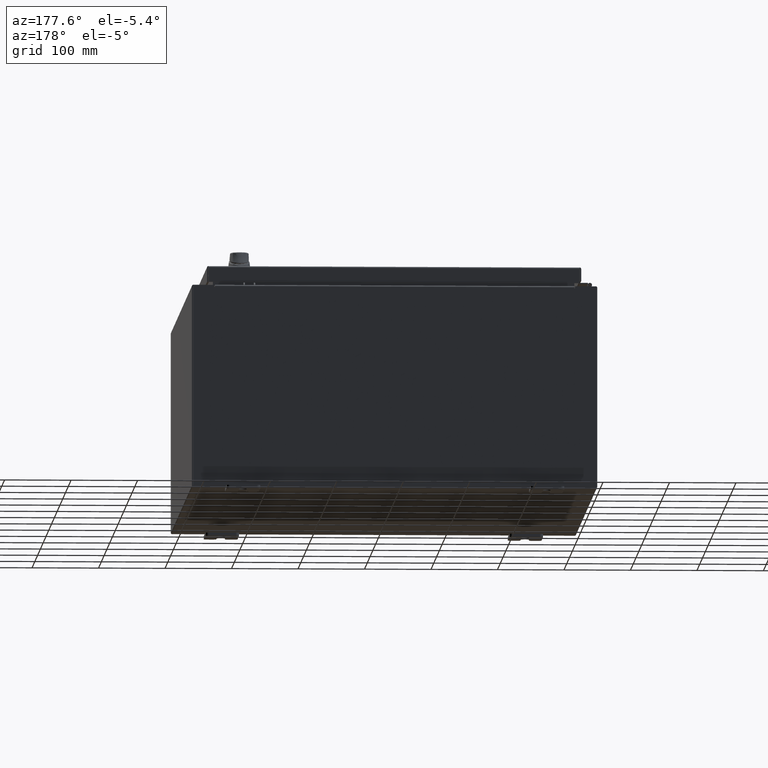
[diagram: clean part render]
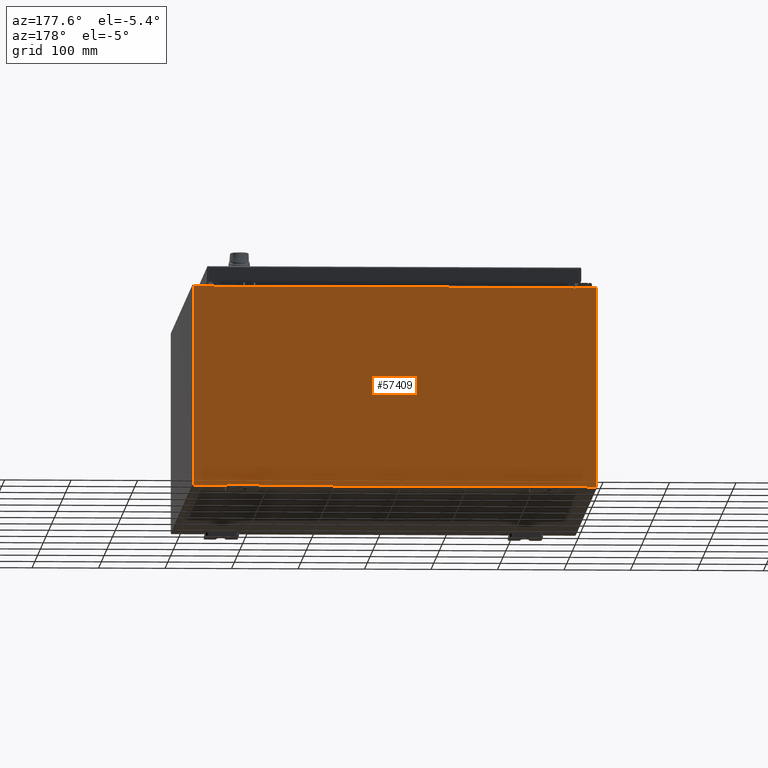
[diagram: same view with one face highlighted and labeled with its STEP entity id]
A machine part, auxiliary view. The second image highlights one B-rep face of the part: STEP entity #57409.
In plain terms, the highlighted planar face has unit normal (0, -1, 0).
Its self-contained STEP definition (entity closure, byte-faithful):
#686 = EDGE_CURVE ( 'NONE', #81091, #35815, #71643, .T. ) ;
#1910 = CARTESIAN_POINT ( 'NONE',  ( -10.65587500000000200, 0.0000000000000000000, 5.874950000000001000 ) ) ;
#2656 = EDGE_CURVE ( 'NONE', #72670, #35815, #78476, .T. ) ;
#2892 = CARTESIAN_POINT ( 'NONE',  ( -11.92530000000000000, 0.0000000000000000000, 5.925300000000000000 ) ) ;
#3544 = LINE ( 'NONE', #85472, #48846 ) ;
#3907 = CARTESIAN_POINT ( 'NONE',  ( -11.92530000000000000, 0.0000000000000000000, 5.925300000000000000 ) ) ;
#5787 = LINE ( 'NONE', #97620, #26984 ) ;
#7012 = CARTESIAN_POINT ( 'NONE',  ( 11.92530000000000000, 0.0000000000000000000, 5.925300000000001800 ) ) ;
#7559 = AXIS2_PLACEMENT_3D ( 'NONE', #54464, #36671, #99892 ) ;
#7706 = EDGE_CURVE ( 'NONE', #103968, #27398, #89135, .T. ) ;
#8965 = CARTESIAN_POINT ( 'NONE',  ( -10.67455000000000200, 0.0000000000000000000, 5.925300000000000000 ) ) ;
#9021 = EDGE_CURVE ( 'NONE', #86679, #72670, #12524, .T. ) ;
#9444 = ORIENTED_EDGE ( 'NONE', *, *, #7706, .T. ) ;
#9932 = ORIENTED_EDGE ( 'NONE', *, *, #52444, .T. ) ;
#10978 = DIRECTION ( 'NONE',  ( 0.0000000000000000000, 0.0000000000000000000, -1.000000000000000000 ) ) ;
#11747 = EDGE_CURVE ( 'NONE', #107232, #67331, #5787, .T. ) ;
#12524 = CIRCLE ( 'NONE', #58686, 0.01867499999999949400 ) ;
#14057 = LINE ( 'NONE', #3907, #35271 ) ;
#15248 = VECTOR ( 'NONE', #114558, 39.37007874015748100 ) ;
#15449 = EDGE_CURVE ( 'NONE', #54934, #86679, #60516, .T. ) ;
#16130 = DIRECTION ( 'NONE',  ( -1.000000000000000000, -0.0000000000000000000, -0.0000000000000000000 ) ) ;
#16833 = DIRECTION ( 'NONE',  ( 0.0000000000000000000, 0.0000000000000000000, -1.000000000000000000 ) ) ;
#16972 = VECTOR ( 'NONE', #86688, 39.37007874015748100 ) ;
#18434 = VERTEX_POINT ( 'NONE', #79920 ) ;
#20678 = VECTOR ( 'NONE', #64778, 39.37007874015748100 ) ;
#21076 = DIRECTION ( 'NONE',  ( 1.000000000000000000, 0.0000000000000000000, 4.581600452255731000E-017 ) ) ;
#22870 = CIRCLE ( 'NONE', #63201, 0.01867499999999949400 ) ;
#25377 = VERTEX_POINT ( 'NONE', #56073 ) ;
#26229 = EDGE_CURVE ( 'NONE', #27398, #89857, #95428, .T. ) ;
#26605 = CARTESIAN_POINT ( 'NONE',  ( 10.63720000000000400, 0.0000000000000000000, 5.912300000000001000 ) ) ;
#26984 = VECTOR ( 'NONE', #69982, 39.37007874015748100 ) ;
#27398 = VERTEX_POINT ( 'NONE', #41277 ) ;
#27547 = PLANE ( 'NONE',  #7559 ) ;
#31204 = DIRECTION ( 'NONE',  ( -0.0000000000000000000, -0.0000000000000000000, 1.000000000000000000 ) ) ;
#31478 = CARTESIAN_POINT ( 'NONE',  ( 10.67455000000000200, 0.0000000000000000000, 5.925300000000001800 ) ) ;
#32527 = CARTESIAN_POINT ( 'NONE',  ( 11.92530000000000000, 0.0000000000000000000, 5.925300000000001800 ) ) ;
#34537 = DIRECTION ( 'NONE',  ( 0.0000000000000000000, 0.0000000000000000000, 1.000000000000000000 ) ) ;
#35271 = VECTOR ( 'NONE', #31204, 39.37007874015748100 ) ;
#35815 = VERTEX_POINT ( 'NONE', #26605 ) ;
#36671 = DIRECTION ( 'NONE',  ( 0.0000000000000000000, -1.000000000000000000, 0.0000000000000000000 ) ) ;
#39349 = LINE ( 'NONE', #51295, #15248 ) ;
#41277 = CARTESIAN_POINT ( 'NONE',  ( 11.92530000000000000, 0.0000000000000000000, -5.925299999999999100 ) ) ;
#48538 = EDGE_CURVE ( 'NONE', #25377, #107232, #22870, .T. ) ;
#48846 = VECTOR ( 'NONE', #58612, 39.37007874015748100 ) ;
#49176 = CARTESIAN_POINT ( 'NONE',  ( 10.65587500000000200, 0.0000000000000000000, 5.874950000000001000 ) ) ;
#49397 = ORIENTED_EDGE ( 'NONE', *, *, #26229, .T. ) ;
#51295 = CARTESIAN_POINT ( 'NONE',  ( -11.92530000000000000, 0.0000000000000000000, 5.925300000000000000 ) ) ;
#52444 = EDGE_CURVE ( 'NONE', #89857, #18434, #14057, .T. ) ;
#52532 = ORIENTED_EDGE ( 'NONE', *, *, #9021, .F. ) ;
#54464 = CARTESIAN_POINT ( 'NONE',  ( 0.0000000000000000000, 0.0000000000000000000, 0.0000000000000000000 ) ) ;
#54748 = CARTESIAN_POINT ( 'NONE',  ( -10.63720000000000400, -1.707404996040164500E-016, 5.912300000000001000 ) ) ;
#54934 = VERTEX_POINT ( 'NONE', #31478 ) ;
#55134 = CARTESIAN_POINT ( 'NONE',  ( -10.67455000000000200, 0.0000000000000000000, 5.874950000000001000 ) ) ;
#56073 = CARTESIAN_POINT ( 'NONE',  ( -10.63720000000000400, -0.0000000000000000000, 5.874950000000001000 ) ) ;
#57285 = VECTOR ( 'NONE', #34537, 39.37007874015748100 ) ;
#57409 = ADVANCED_FACE ( 'NONE', ( #98345 ), #27547, .F. ) ;
#57705 = EDGE_LOOP ( 'NONE', ( #80291, #81632, #97486, #79036, #102429, #52532, #116443, #86962, #9444, #49397, #9932, #88371 ) ) ;
#58270 = DIRECTION ( 'NONE',  ( 0.0000000000000000000, 0.0000000000000000000, -1.000000000000000000 ) ) ;
#58612 = DIRECTION ( 'NONE',  ( 0.0000000000000000000, 0.0000000000000000000, -1.000000000000000000 ) ) ;
#58686 = AXIS2_PLACEMENT_3D ( 'NONE', #49176, #112414, #58270 ) ;
#60484 = CARTESIAN_POINT ( 'NONE',  ( 10.67455000000000200, 0.0000000000000000000, 5.874950000000001000 ) ) ;
#60516 = LINE ( 'NONE', #116080, #84570 ) ;
#63201 = AXIS2_PLACEMENT_3D ( 'NONE', #1910, #65212, #10978 ) ;
#63534 = VECTOR ( 'NONE', #21076, 39.37007874015748100 ) ;
#64778 = DIRECTION ( 'NONE',  ( 1.000000000000000000, 0.0000000000000000000, 0.0000000000000000000 ) ) ;
#65212 = DIRECTION ( 'NONE',  ( -0.0000000000000000000, 1.000000000000000000, -0.0000000000000000000 ) ) ;
#66384 = LINE ( 'NONE', #2892, #63534 ) ;
#67331 = VERTEX_POINT ( 'NONE', #8965 ) ;
#69982 = DIRECTION ( 'NONE',  ( 0.0000000000000000000, 0.0000000000000000000, 1.000000000000000000 ) ) ;
#71643 = LINE ( 'NONE', #54748, #20678 ) ;
#72670 = VERTEX_POINT ( 'NONE', #108657 ) ;
#73079 = EDGE_CURVE ( 'NONE', #81091, #25377, #3544, .T. ) ;
#78476 = LINE ( 'NONE', #88703, #57285 ) ;
#79036 = ORIENTED_EDGE ( 'NONE', *, *, #686, .T. ) ;
#79920 = CARTESIAN_POINT ( 'NONE',  ( -11.92530000000000000, 0.0000000000000000000, 5.925300000000000000 ) ) ;
#80291 = ORIENTED_EDGE ( 'NONE', *, *, #11747, .F. ) ;
#81091 = VERTEX_POINT ( 'NONE', #98066 ) ;
#81632 = ORIENTED_EDGE ( 'NONE', *, *, #48538, .F. ) ;
#84570 = VECTOR ( 'NONE', #16833, 39.37007874015748100 ) ;
#85472 = CARTESIAN_POINT ( 'NONE',  ( -10.63720000000000400, -0.0000000000000000000, 0.0000000000000000000 ) ) ;
#86679 = VERTEX_POINT ( 'NONE', #60484 ) ;
#86688 = DIRECTION ( 'NONE',  ( 0.0000000000000000000, 0.0000000000000000000, -1.000000000000000000 ) ) ;
#86962 = ORIENTED_EDGE ( 'NONE', *, *, #113009, .T. ) ;
#88371 = ORIENTED_EDGE ( 'NONE', *, *, #106266, .T. ) ;
#88703 = CARTESIAN_POINT ( 'NONE',  ( 10.63720000000000400, 0.0000000000000000000, 0.0000000000000000000 ) ) ;
#89135 = LINE ( 'NONE', #32527, #16972 ) ;
#89857 = VERTEX_POINT ( 'NONE', #95051 ) ;
#92566 = VECTOR ( 'NONE', #16130, 39.37007874015748100 ) ;
#95051 = CARTESIAN_POINT ( 'NONE',  ( -11.92530000000000000, 0.0000000000000000000, -5.925299999999999100 ) ) ;
#95428 = LINE ( 'NONE', #115394, #92566 ) ;
#97486 = ORIENTED_EDGE ( 'NONE', *, *, #73079, .F. ) ;
#97620 = CARTESIAN_POINT ( 'NONE',  ( -10.67455000000000200, -0.0000000000000000000, 0.0000000000000000000 ) ) ;
#98066 = CARTESIAN_POINT ( 'NONE',  ( -10.63720000000000400, -1.707404996040164500E-016, 5.912300000000001000 ) ) ;
#98345 = FACE_OUTER_BOUND ( 'NONE', #57705, .T. ) ;
#99892 = DIRECTION ( 'NONE',  ( 0.0000000000000000000, -0.0000000000000000000, -1.000000000000000000 ) ) ;
#102429 = ORIENTED_EDGE ( 'NONE', *, *, #2656, .F. ) ;
#103968 = VERTEX_POINT ( 'NONE', #7012 ) ;
#106266 = EDGE_CURVE ( 'NONE', #18434, #67331, #39349, .T. ) ;
#107232 = VERTEX_POINT ( 'NONE', #55134 ) ;
#108657 = CARTESIAN_POINT ( 'NONE',  ( 10.63720000000000400, 0.0000000000000000000, 5.874950000000001000 ) ) ;
#112414 = DIRECTION ( 'NONE',  ( -0.0000000000000000000, 1.000000000000000000, -0.0000000000000000000 ) ) ;
#113009 = EDGE_CURVE ( 'NONE', #54934, #103968, #66384, .T. ) ;
#114558 = DIRECTION ( 'NONE',  ( 1.000000000000000000, 0.0000000000000000000, 4.581600452255731000E-017 ) ) ;
#115394 = CARTESIAN_POINT ( 'NONE',  ( -11.92530000000000000, 0.0000000000000000000, -5.925299999999999100 ) ) ;
#116080 = CARTESIAN_POINT ( 'NONE',  ( 10.67455000000000200, 0.0000000000000000000, 0.0000000000000000000 ) ) ;
#116443 = ORIENTED_EDGE ( 'NONE', *, *, #15449, .F. ) ;